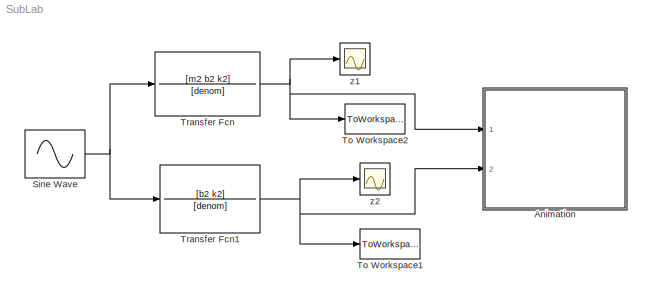
MODEL SubLab
KIND model
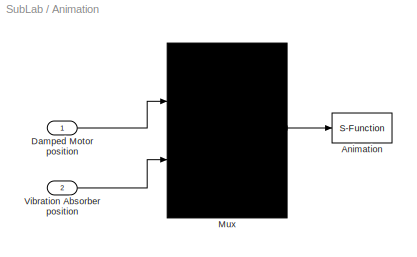
BLOCK [SubSystem] Animation
  FunctionWithSeparateData = off
  MaskHideContents = off
  MinAlgLoopOccurrences = off
  Opaque = off
  Ports = [2]
  PropExecContextOutsideSubsystem = off
  RTWSystemCode = Auto
  RequestExecContextInheritance = off
  SID = 9
BLOCK [S-Function] Animation/Animation
  EnableBusSupport = off
  FunctionName = Manim2
  Ports = [1]
  SID = 12
BLOCK [Inport] Animation/Damped Motor position
  IconDisplay = Port number
  SID = 10
BLOCK [Mux] Animation/Mux
  Inputs = 2
  Ports = [2, 1]
  SID = 13
BLOCK [Inport] Animation/Vibration Absorber position
  IconDisplay = Port number
  Port = 2
  SID = 11
BLOCK [Sin] Sine Wave
  Frequency = 7
  Ports = [0, 1]
  SID = 1
  SampleTime = 0
BLOCK [ToWorkspace] To Workspace1
  MaxDataPoints = inf
  Ports = [1]
  SID = 7
  SampleTime = -1
  SaveFormat = Array
  VariableName = z2
BLOCK [ToWorkspace] To Workspace2
  MaxDataPoints = inf
  Ports = [1]
  SID = 8
  SampleTime = -1
  SaveFormat = Array
  VariableName = z1
BLOCK [TransferFcn] Transfer Fcn
  Denominator = [denom]
  Numerator = [m2 b2 k2]
  SID = 2
BLOCK [TransferFcn] Transfer Fcn1
  Denominator = [denom]
  Numerator = [b2 k2]
  SID = 3
BLOCK [Scope] z1
  DataFormat = StructureWithTime
  Floating = off
  NumInputPorts = 1
  Ports = [1]
  SID = 4
  SampleTime = 0
  ZoomMode = xonly
BLOCK [Scope] z2
  DataFormat = StructureWithTime
  Floating = off
  NumInputPorts = 1
  Ports = [1]
  SID = 5
  SampleTime = 0
  SaveName = ScopeData1
LINE Animation/Damped Motor position:1 -> Animation/Mux:1
LINE Animation/Mux:1 -> Animation/Animation:1
LINE Animation/Vibration Absorber position:1 -> Animation/Mux:2
NET Sine Wave:1 -> Transfer Fcn1:1, Transfer Fcn:1
NET Transfer Fcn1:1 -> Animation:2, To Workspace1:1, z2:1
NET Transfer Fcn:1 -> Animation:1, To Workspace2:1, z1:1
note: NET lines group one-source signal fan-out (src -> all destinations, sorted); 1:1 wires keep LINE
